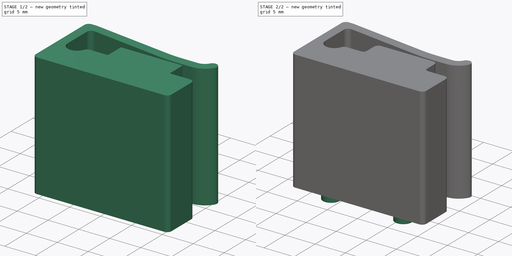
[diagram: build sequence overview — one tinted view per stage of 2, left to right]
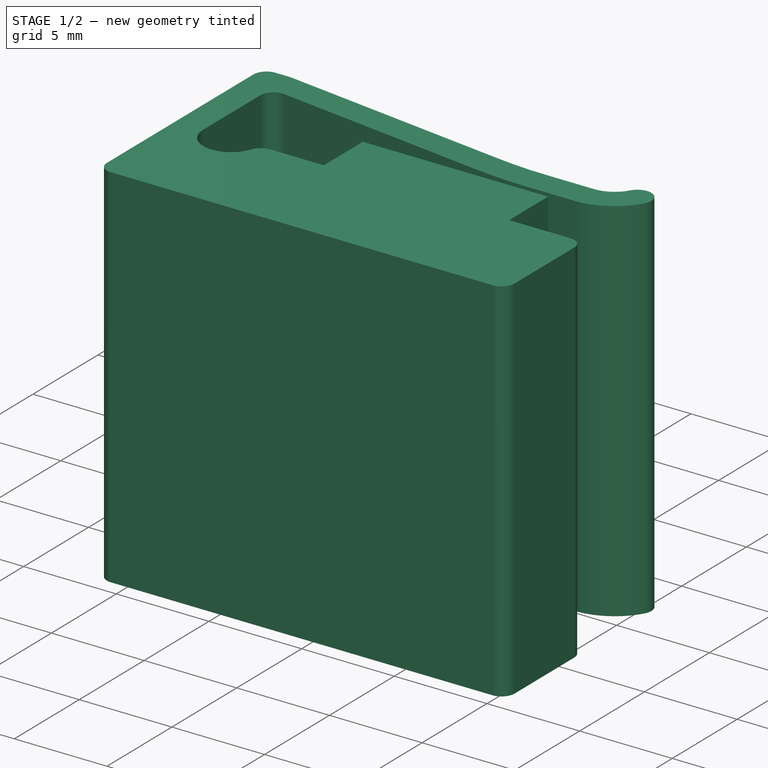
[diagram: stage 1 of 2 — iso view after this stage's code; geometry added in this stage tinted green]
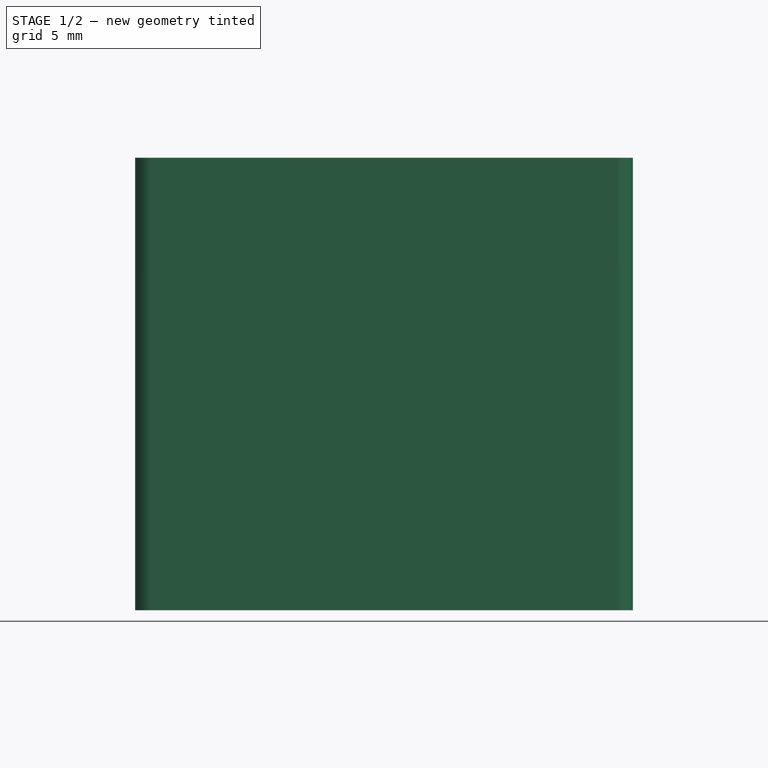
[diagram: stage 1 of 2 — front view after this stage's code; geometry added in this stage tinted green]
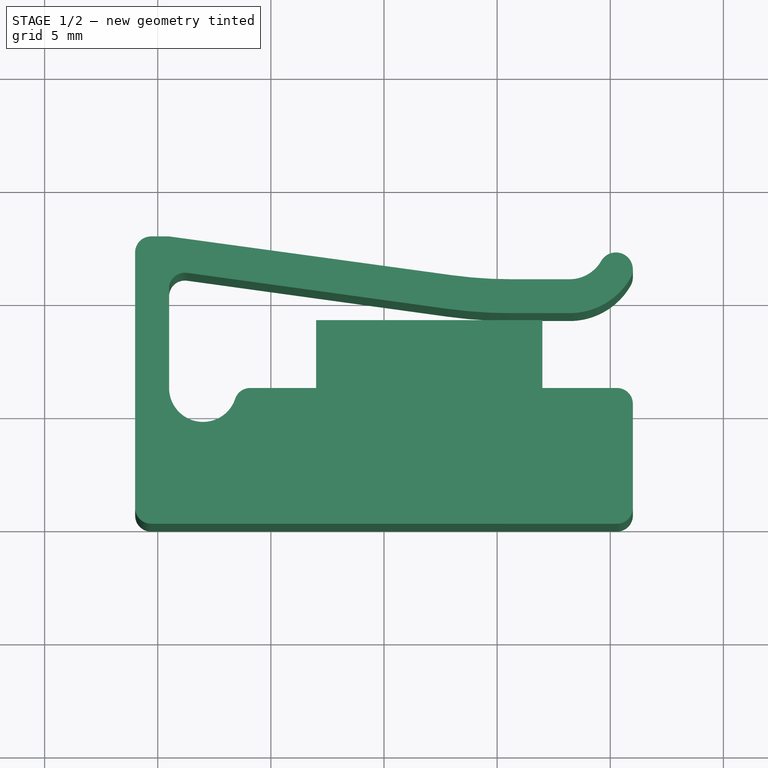
[diagram: stage 1 of 2 — top view after this stage's code; geometry added in this stage tinted green]
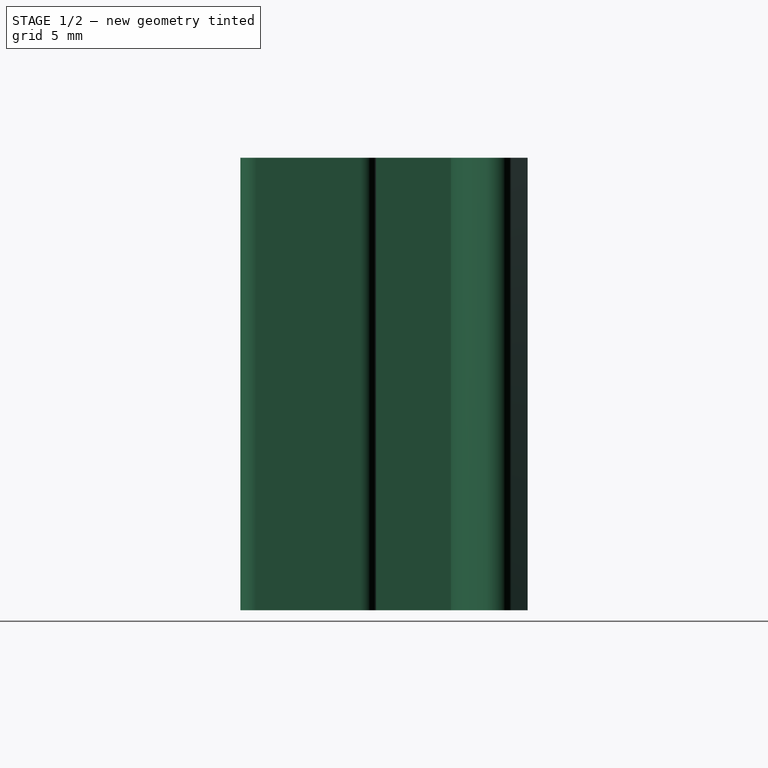
[diagram: stage 1 of 2 — right view after this stage's code; geometry added in this stage tinted green]
FCSTD DOCUMENT  (FreeCAD 0.21R33694 (Git))
Label: battery_mount
License: All rights reserved
LicenseURL: https://en.wikipedia.org/wiki/All_rights_reserved
objects: Sketcher::SketchObject×3, PartDesign::Pad×3, Spreadsheet::Sheet×1, PartDesign::Plane×1, PartDesign::Fillet×1, PartDesign::Body×1
note: 13 computed .brp shape members not serialized (recipe doc carries the construction recipe); baked Part::Feature solids carry a one-line shape summary decoded from their .brp

FEATURE [Spreadsheet::Sheet] Spreadsheet
  cells = A2='Design Parameters; A4='Battery_Thickness; B4(Battery_Thickness)==5 mm; A5='Battery_Margin; B5(Battery_Margin)==0.2 mm; A7='Base_Height; B7(Base_Height)==6 mm; A8='Base_Length; B8(Base_Length)==22 mm; A9='Base_Width; B9(Base_Width)==20 mm; A11='Clip_Thickness; B11(Clip_Thickness)==1.5 mm; A12='Clip_Max_Height; B12(Clip_Max_Height)==Battery_Thickness + Battery_Margin; A13='Clip_Min_Height; B13(Clip_Min_Height)==0.7 * Battery_Thickness; A14='Clip_Slope_Length; B14(Clip_Slope_Length)==0.6 * (Base_Length - Clip_Thickness); A15='Clip_Flat_Length; B15(Clip_Flat_Length)==2.6 mm; A16='Clip_Tip_Length; B16(Clip_Tip_Length)==2.8 mm; A17='Clip_Tip_Angle; B17(Clip_Tip_Angle)==60 deg; A18='Clip_Flex_Radius; B18(Clip_Flex_Radius)==1.5 mm; A19='Clip_Fillet_Radius; B19(Clip_Fillet_Radius)==0.7 mm; A21='Stop_Height; B21(Stop_Height)==3 mm; A22='Stop_Width; B22(Stop_Width)==2 mm; A23='Stop_Length; B23(Stop_Length)==10 mm; A24='Stop_Offset; B24(Stop_Offset)==2 mm; A25='Stop_Fillet_Radius; B25(Stop_Fillet_Radius)==0.7 mm; A27='Alignment_Disk_Diameter; B27(Alignment_Disk_Diameter)==2 mm; A28='Alignment_Disk_Bottom_Margin; B28(Alignment_Disk_Bottom_Margin)==1 mm; A29='Alignment_Disk_Top_Height; B29(Alignment_Disk_Top_Height)==3.75 mm; A30='Alignment_Disk_Separation; B30(Alignment_Disk_Separation)==12 mm; A31='Alignment_Disk_Pad_Height; B31(Alignment_Disk_Pad_Height)==1.4 mm
FEATURE [Sketcher::SketchObject] Sketch  label="ClipSketch"
  FullyConstrained = true
  MapMode = 5
  Support = -> [XY_Plane]
  expr: Constraints[10] = Spreadsheet.Base_Height
  expr: Constraints[14] = Spreadsheet.Clip_Max_Height
  expr: Constraints[15] = Spreadsheet.Clip_Thickness
  expr: Constraints[25] = Spreadsheet.Clip_Thickness
  expr: Constraints[26] = Spreadsheet.Clip_Thickness
  expr: Constraints[33] = Spreadsheet.Clip_Min_Height
  expr: Constraints[50] = Spreadsheet.Clip_Slope_Length
  expr: Constraints[51] = Spreadsheet.Clip_Tip_Angle
  expr: Constraints[52] = Spreadsheet.Clip_Tip_Length
  expr: Constraints[53] = Spreadsheet.Clip_Flat_Length
  expr: Constraints[66] = Spreadsheet.Clip_Fillet_Radius
  expr: Constraints[88] = Spreadsheet.Clip_Flex_Radius
  expr: Constraints[9] = Spreadsheet.Base_Length
  sketch-geometry (40):
    g0: LineSegment StartX=-10.3 StartY=0 StartZ=0 EndX=10.3 EndY=0 EndZ=0
    g1: LineSegment StartX=-11 StartY=0.7 StartZ=0 EndX=-11 EndY=6 EndZ=0
    g2: LineSegment StartX=-11 StartY=6 StartZ=0 EndX=-11 EndY=12 EndZ=0
    g3: LineSegment StartX=-9.5 StartY=6 StartZ=0 EndX=10.3 EndY=6 EndZ=0
    g4: LineSegment StartX=11 StartY=5.3 StartZ=0 EndX=11 EndY=0.7 EndZ=0
    g5: LineSegment StartX=-10.3 StartY=12.7 StartZ=0 EndX=-9.54775 EndY=12.7 EndZ=0
    g6: LineSegment StartX=-9.5 StartY=6 StartZ=0 EndX=-9.5 EndY=10.3966 EndZ=0
    g7: LineSegment StartX=-11 StartY=6 StartZ=0 EndX=-9.5 EndY=6 EndZ=0
    g8: LineSegment StartX=-8.70416 StartY=11.09 StartZ=0 EndX=2.8 EndY=9.5 EndZ=0
    g9: LineSegment StartX=2.8 StartY=9.5 StartZ=0 EndX=2.8 EndY=6 EndZ=0
    g10: LineSegment StartX=-9.5 StartY=11.2 StartZ=0 EndX=-9.5 EndY=12.7 EndZ=0
    g11: LineSegment StartX=-9.45269 StartY=12.6935 StartZ=0 EndX=3.0037 EndY=10.9861 EndZ=0
    g12: LineSegment StartX=3.0037 StartY=10.9861 StartZ=0 EndX=2.8 EndY=9.5 EndZ=0
    g13: ArcOfCircle CenterX=5.6 CenterY=29.7588 CenterZ=0 NormalX=0 NormalY=0 NormalZ=1 AngleXU=0 Radius=20.4514 StartAngle=4.57505 EndAngle=4.71239
    g14: ArcOfCircle CenterX=5.6 CenterY=29.7588 CenterZ=0 NormalX=0 NormalY=0 NormalZ=1 AngleXU=0 Radius=18.9514 StartAngle=4.57496 EndAngle=4.71239
    g15: LineSegment StartX=5.6 StartY=10.8074 StartZ=0 EndX=5.6 EndY=9.30742 EndZ=0
    g16: LineSegment StartX=5.6 StartY=9.30742 StartZ=0 EndX=8.2 EndY=9.30742 EndZ=0
    g17: LineSegment StartX=8.2 StartY=10.8074 StartZ=0 EndX=8.2 EndY=9.30742 EndZ=0
    g18: ArcOfCircle CenterX=8.2 CenterY=12.4246 CenterZ=0 NormalX=0 NormalY=0 NormalZ=1 AngleXU=0 Radius=3.11714 StartAngle=4.71239 EndAngle=5.75959
    g19: ArcOfCircle CenterX=8.2 CenterY=12.4246 CenterZ=0 NormalX=0 NormalY=0 NormalZ=1 AngleXU=0 Radius=1.61714 StartAngle=4.71239 EndAngle=5.75959
    g20: LineSegment StartX=9.60048 StartY=11.616 StartZ=0 EndX=10.8995 EndY=10.866 EndZ=0
    g21: ArcOfCircle CenterX=10.25 CenterY=11.241 CenterZ=0 NormalX=0 NormalY=0 NormalZ=1 AngleXU=0 Radius=0.749999 StartAngle=5.75959 EndAngle=8.90118
    g22: LineSegment StartX=11 StartY=6 StartZ=0 EndX=11 EndY=11.241 EndZ=0
    g23: ArcOfCircle CenterX=-10.3 CenterY=12 CenterZ=0 NormalX=0 NormalY=0 NormalZ=1 AngleXU=0 Radius=0.7 StartAngle=1.5708 EndAngle=3.14159
    g24: GeomPoint X=-11 Y=12.7 Z=0
    g25: ArcOfCircle CenterX=-9.54775 CenterY=12 CenterZ=0 NormalX=0 NormalY=0 NormalZ=1 AngleXU=0 Radius=0.7 StartAngle=1.43457 EndAngle=1.5708
    g26: GeomPoint X=-9.5 Y=12.7 Z=0
    g27: ArcOfCircle CenterX=-8.8 CenterY=10.3966 CenterZ=0 NormalX=0 NormalY=0 NormalZ=1 AngleXU=0 Radius=0.7 StartAngle=1.43346 EndAngle=3.14159
    g28: GeomPoint X=-9.5 Y=11.2 Z=0
    g29: GeomPoint X=-9.5 Y=6 Z=0
    g30: ArcOfCircle CenterX=-10.3 CenterY=0.7 CenterZ=0 NormalX=0 NormalY=0 NormalZ=1 AngleXU=0 Radius=0.7 StartAngle=3.14159 EndAngle=4.71239
    g31: GeomPoint X=-11 Y=0 Z=0
    g32: ArcOfCircle CenterX=10.3 CenterY=0.7 CenterZ=0 NormalX=0 NormalY=0 NormalZ=1 AngleXU=0 Radius=0.7 StartAngle=4.71239 EndAngle=6.28319
    g33: GeomPoint X=11 Y=0 Z=0
    g34: ArcOfCircle CenterX=10.3 CenterY=5.3 CenterZ=0 NormalX=0 NormalY=0 NormalZ=1 AngleXU=0 Radius=0.7 StartAngle=0 EndAngle=1.5708
    g35: GeomPoint X=11 Y=6 Z=0
    g36: ArcOfCircle CenterX=-8 CenterY=6 CenterZ=0 NormalX=0 NormalY=0 NormalZ=1 AngleXU=0 Radius=1.5 StartAngle=3.14159 EndAngle=5.95937
    g37: LineSegment StartX=-5.91433 StartY=6 StartZ=0 EndX=10.3 EndY=6 EndZ=0
    g38: ArcOfCircle CenterX=-5.91433 CenterY=5.3 CenterZ=0 NormalX=0 NormalY=0 NormalZ=1 AngleXU=0 Radius=0.7 StartAngle=1.5708 EndAngle=2.81778
    g39: LineSegment StartX=5.6 StartY=10.8074 StartZ=0 EndX=8.2 EndY=10.8074 EndZ=0
  constraints (97):
    c: Horizontal(g0)
    c: Symmetric(g31,g33,g-1)
    c: Vertical(g1)
    c: Coincident(g2,g1)
    c: Vertical(g2)
    c: Horizontal(g3)
    c: Vertical(g4)
    c: Horizontal(g5)
    c: Vertical(g6)
    c: DistanceX(g31,g33) = 22
    c: DistanceY(g33,g35) = 6
    c: Coincident(g7,g1)
    c: Coincident(g7,g29)
    c: Horizontal(g7)
    c: DistanceY(g29,g28) = 5.2
    c: DistanceX(g7,g7) = 1.5
    c: Coincident(g9,g8)
    c: PointOnObject(g9,g3)
    c: Vertical(g9)
    c: Coincident(g10,g28)
    c: Coincident(g26,g10)
    c: Vertical(g10)
    c: Coincident(g12,g11)
    c: Coincident(g12,g8)
    c: Perpendicular(g11,g12)
    c: DistanceY(g10,g10) = 1.5
    c: Distance(g12) = 1.5
    c: Tangent(g13,g8) = -1.5708
    c: Coincident(g14,g11)
    c: Coincident(g13,g14)
    c: Coincident(g15,g14)
    c: Coincident(g15,g13)
    c: Perpendicular(g13,g15)
    c: DistanceY(g9,g9) = 3.5
    c: Vertical(g15)
    c: Horizontal(g16)
    c: Coincident(g16,g13)
    c: Coincident(g17,g16)
    c: Vertical(g17)
    c: Coincident(g18,g19)
    c: Tangent(g18,g16) = -1.5708
    c: Coincident(g20,g19)
    c: Coincident(g20,g18)
    c: Perpendicular(g18,g20)
    c: PointOnObject(g21,g20)
    c: Coincident(g19,g21)
    c: Coincident(g21,g18)
    c: Coincident(g22,g35)
    c: Vertical(g22)
    c: Tangent(g22,g21) = -1.5708
    c: DistanceX(g29,g9) = 12.3
    c: Angle(g17,g20) = 1.0472
    c: DistanceX(g16,g35) = 2.8
    c: DistanceX(g16,g16) = 2.6
    c: PointOnObject(g24,g2)
    c: PointOnObject(g24,g5)
    c: Tangent(g2,g23) = 1.5708
    c: Tangent(g5,g23) = 1.5708
    c: PointOnObject(g26,g5)
    c: PointOnObject(g26,g11)
    c: Tangent(g5,g25) = 1.5708
    c: Tangent(g11,g25) = 1.5708
    c: PointOnObject(g28,g6)
    c: PointOnObject(g28,g8)
    c: Tangent(g6,g27) = 1.5708
    c: Tangent(g8,g27) = 1.5708
    c: Radius(g23) = 0.7
    c: Equal(g23,g27)
    c: Equal(g25,g23)
    c: PointOnObject(g31,g1)
    c: PointOnObject(g31,g0)
    c: Tangent(g1,g30) = 1.5708
    c: Tangent(g0,g30) = -1.5708
    c: PointOnObject(g33,g0)
    c: PointOnObject(g33,g4)
    c: Tangent(g0,g32) = -1.5708
    c: Tangent(g4,g32) = 1.5708
    c: PointOnObject(g35,g3)
    c: PointOnObject(g35,g4)
    c: Tangent(g3,g34) = 1.5708
    c: Tangent(g4,g34) = 1.5708
    c: Equal(g23,g30)
    c: Equal(g23,g34)
    c: Equal(g23,g32)
    c: Coincident(g6,g7)
    c: Coincident(g6,g3)
    c: Tangent(g36,g6) = 1.5708
    c: Coincident(g37,g34)
    c: Radius(g36) = 1.5
    c: Tangent(g36,g38) = 1.5708
    c: Tangent(g37,g38) = 1.5708
    c: Equal(g23,g38)
    c: Horizontal(g37)
    c: Coincident(g39,g14)
    c: Coincident(g39,g19)
    c: Horizontal(g39)
    c: Coincident(g19,g17)
FEATURE [PartDesign::Pad] Pad  label="ClipPad"
  Direction = (0,0,1)
  Length = 20
  Length2 = 10
  Profile = -> Sketch
  ReferenceAxis = -> Sketch [N_Axis]
  Type = 0
  expr: Length = Spreadsheet.Base_Width
FEATURE [PartDesign::Plane] DatumPlane  label="BaseTopDatumPlane"
  AttachmentOffset = pos=(0,0,-6) rot=(0,0,1;0rad)
  Length = 60
  MapMode = 5
  Placement = pos=(0,6,1.3e-15) rot=(1,0,0;1.5708rad)
  ResizeMode = 0
  Support = -> [XZ_Plane]
  Width = 60
  expr: .AttachmentOffset.Base.z = -Spreadsheet.Base_Height
FEATURE [Sketcher::SketchObject] Sketch001  label="StopSketch"
  FullyConstrained = true
  MapMode = 5
  Placement = pos=(0,6,1.3e-15) rot=(1,0,0;1.5708rad)
  Support = -> [DatumPlane]
  expr: Constraints[11] = Spreadsheet.Base_Width
  expr: Constraints[16] = Spreadsheet.Stop_Offset
  expr: Constraints[8] = Spreadsheet.Stop_Length
  expr: Constraints[9] = Spreadsheet.Stop_Width
  sketch-geometry (6):
    g0: LineSegment StartX=-3 StartY=20 StartZ=0 EndX=7 EndY=20 EndZ=0
    g1: LineSegment StartX=7 StartY=20 StartZ=0 EndX=7 EndY=18 EndZ=0
    g2: LineSegment StartX=7 StartY=18 StartZ=0 EndX=-3 EndY=18 EndZ=0
    g3: LineSegment StartX=-3 StartY=18 StartZ=0 EndX=-3 EndY=20 EndZ=0
    g4: LineSegment StartX=2 StartY=0 StartZ=0 EndX=2 EndY=20 EndZ=0
    g5: LineSegment StartX=0 StartY=0 StartZ=0 EndX=2 EndY=0 EndZ=0
  constraints (17):
    c: Coincident(g0,g1)
    c: Coincident(g1,g2)
    c: Coincident(g2,g3)
    c: Coincident(g3,g0)
    c: Horizontal(g0)
    c: Horizontal(g2)
    c: Vertical(g1)
    c: Vertical(g3)
    c: DistanceX(g2,g2) = 10
    c: DistanceY(g3,g3) = 2
    c: Vertical(g4)
    c: DistanceY(g4,g4) = 20
    c: Symmetric(g0,g0,g4)
    c: Coincident(g5,g-1)
    c: PointOnObject(g5,g-1)
    c: Coincident(g4,g5)
    c: DistanceX(g5,g5) = 2
FEATURE [PartDesign::Pad] Pad001  label="StopPad"
  BaseFeature = -> Pad
  Direction = (0,-1,-2e-16)
  Length = 3
  Length2 = 10
  Profile = -> Sketch001
  ReferenceAxis = -> Sketch001 [N_Axis]
  Reversed = true
  Type = 0
  expr: Length = Spreadsheet.Stop_Height
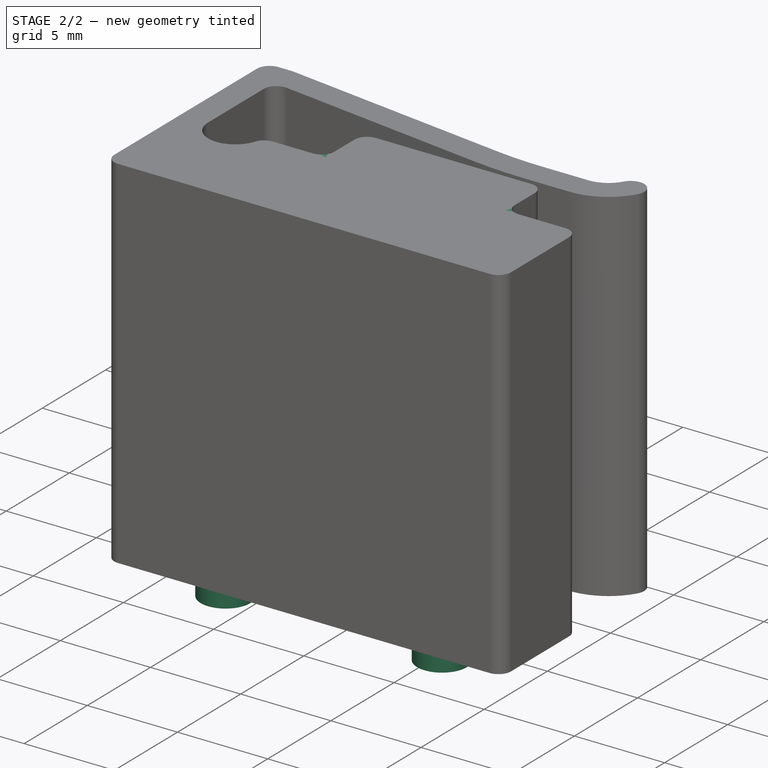
[diagram: stage 2 of 2 — iso view after this stage's code; geometry added in this stage tinted green]
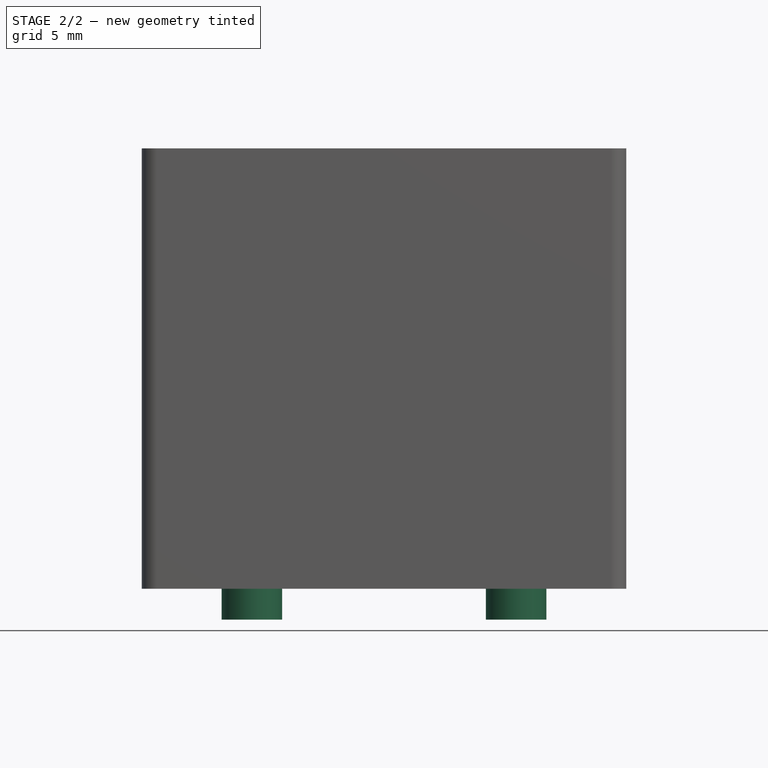
[diagram: stage 2 of 2 — front view after this stage's code; geometry added in this stage tinted green]
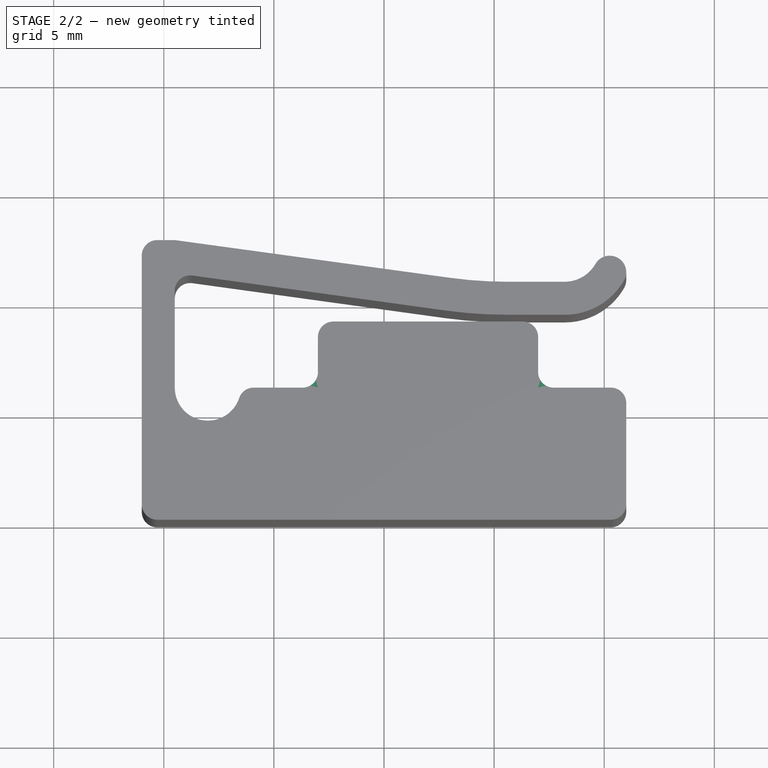
[diagram: stage 2 of 2 — top view after this stage's code; geometry added in this stage tinted green]
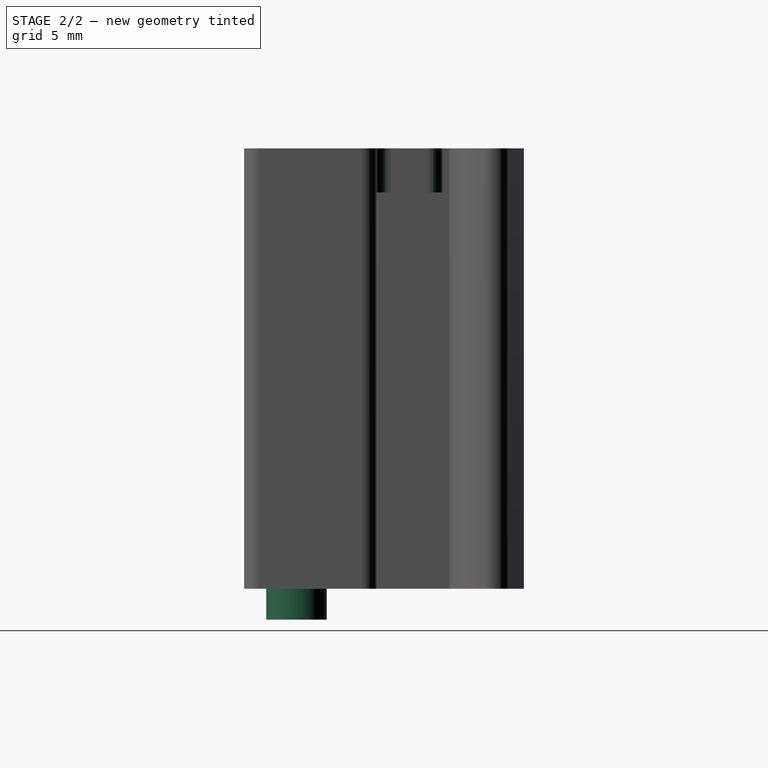
[diagram: stage 2 of 2 — right view after this stage's code; geometry added in this stage tinted green]
FEATURE [Sketcher::SketchObject] Sketch002  label="AlignmentDiskSketch"
  FullyConstrained = true
  MapMode = 5
  Support = -> [XY_Plane]
  expr: Constraints[18] = Spreadsheet.Alignment_Disk_Top_Height
  expr: Constraints[19] = Spreadsheet.Alignment_Disk_Bottom_Margin
  expr: Constraints[21] = Spreadsheet.Alignment_Disk_Separation
  sketch-geometry (8):
    g0: LineSegment StartX=0 StartY=0 StartZ=0 EndX=0 EndY=2.375 EndZ=0
    g1: LineSegment StartX=0 StartY=2.375 StartZ=0 EndX=6 EndY=2.375 EndZ=0
    g2: LineSegment StartX=0 StartY=2.375 StartZ=0 EndX=-6 EndY=2.375 EndZ=0
    g3: Circle CenterX=6 CenterY=2.375 CenterZ=0 NormalX=0 NormalY=0 NormalZ=1 AngleXU=0 Radius=1.375
    g4: Circle CenterX=-6 CenterY=2.375 CenterZ=0 NormalX=0 NormalY=0 NormalZ=1 AngleXU=0 Radius=1.375
    g5: LineSegment StartX=6 StartY=3.75 StartZ=0 EndX=6 EndY=1 EndZ=0
    g6: LineSegment StartX=-6 StartY=3.75 StartZ=0 EndX=-6 EndY=1 EndZ=0
    g7: LineSegment StartX=-6 StartY=1 StartZ=0 EndX=-6 EndY=0 EndZ=0
  constraints (22):
    c: Coincident(g0,g-1)
    c: Vertical(g0)
    c: Horizontal(g1)
    c: Coincident(g1,g0)
    c: Coincident(g2,g0)
    c: Horizontal(g2)
    c: Coincident(g3,g1)
    c: Coincident(g4,g2)
    c: Equal(g3,g4)
    c: Vertical(g5)
    c: Symmetric(g6,g6,g4)
    c: PointOnObject(g6,g4)
    c: Vertical(g6)
    c: Symmetric(g5,g5,g3)
    c: PointOnObject(g5,g3)
    c: Coincident(g7,g6)
    c: PointOnObject(g7,g-1)
    c: Vertical(g7)
    c: DistanceY(g7,g6) = 3.75
    c: DistanceY(g7,g7) = 1
    c: Equal(g2,g1)
    c: DistanceX(g4,g3) = 12
FEATURE [PartDesign::Pad] Pad002  label="AlignmentDiskPad"
  BaseFeature = -> Pad001
  Direction = (0,0,1)
  Length = 1.4
  Length2 = 10
  Profile = -> Sketch002
  ReferenceAxis = -> Sketch002 [N_Axis]
  Reversed = true
  Type = 0
  expr: Length = Spreadsheet.Alignment_Disk_Pad_Height
FEATURE [PartDesign::Fillet] Fillet  label="StopFillet"
  Base = -> Pad002 [Edge91,Edge66,Edge88,Edge64]
  BaseFeature = -> Pad002
  Radius = 0.7
  SupportTransform = false
  UseAllEdges = false
  expr: Radius = Spreadsheet.Stop_Fillet_Radius
FEATURE [PartDesign::Body] Body
  Group = -> [Sketch,Pad,DatumPlane,Sketch001,Pad001,Sketch002,Pad002,Fillet]
  Origin = -> Origin
  Tip = -> Fillet
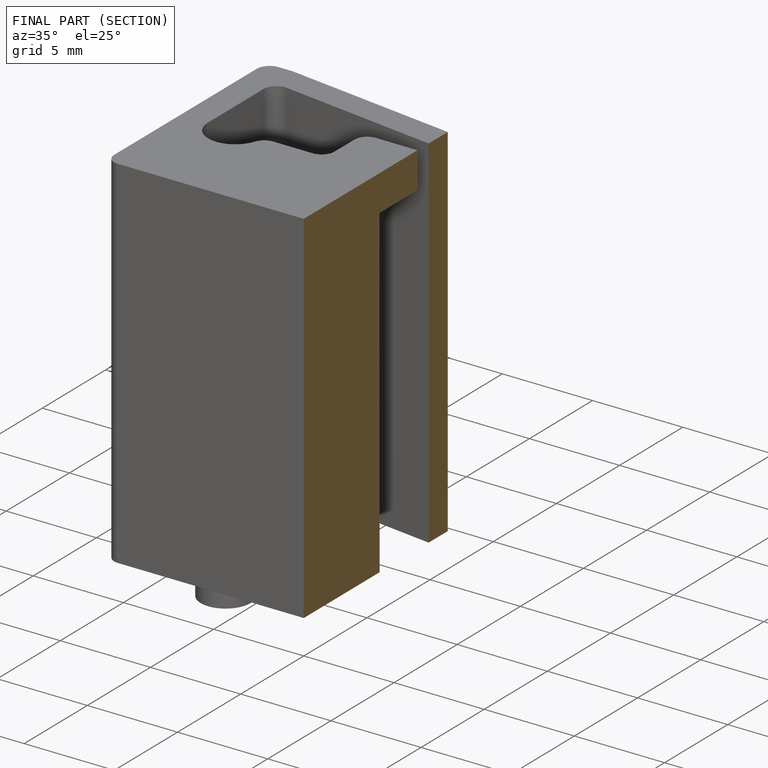
[diagram: finished part — half-section view (interior)]
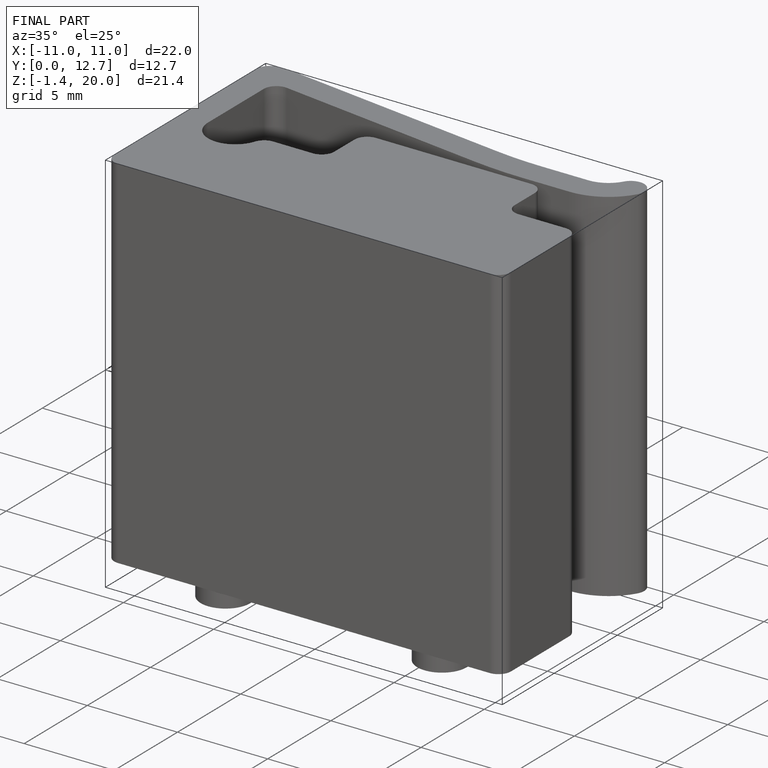
[diagram: finished part — iso view with bounding-box wireframe]
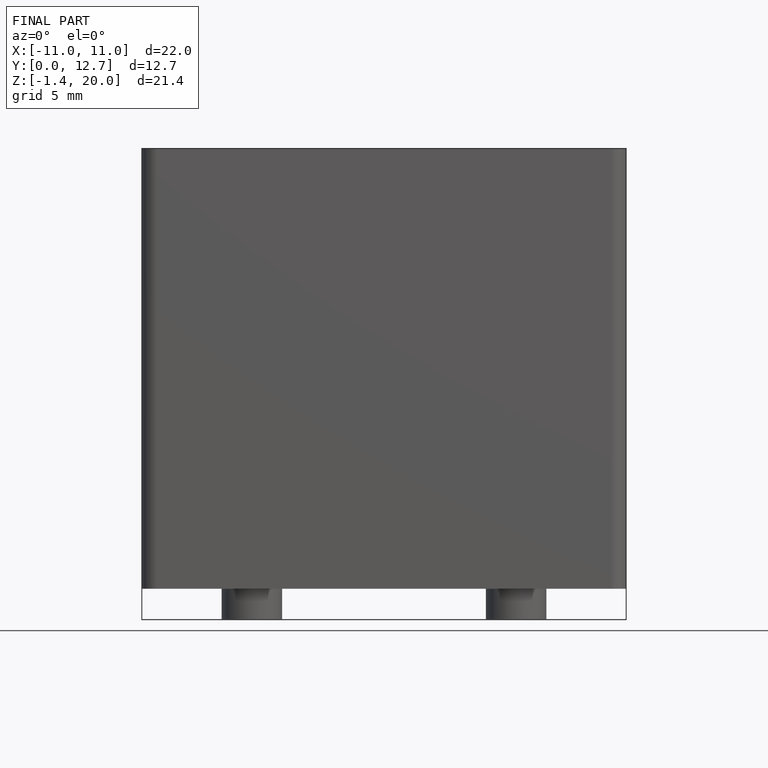
[diagram: finished part — front view with bounding-box wireframe]
